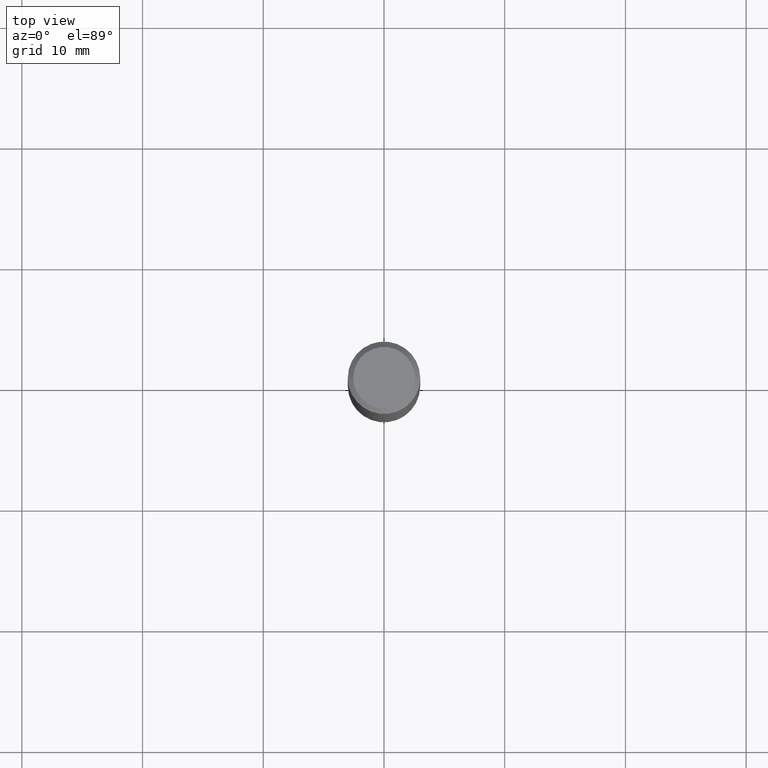
[diagram: clean part render]
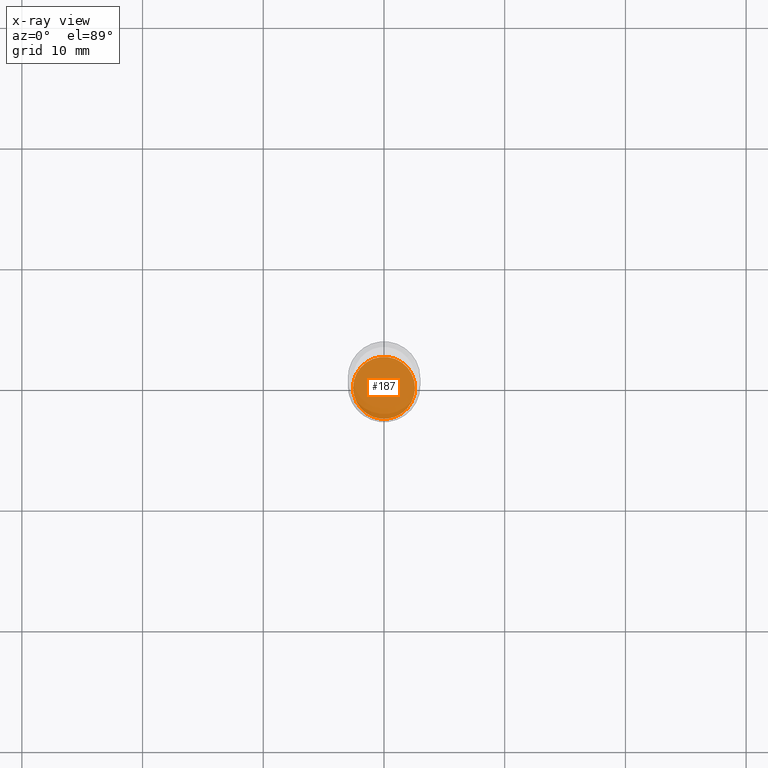
[diagram: x-ray — body ghosted, one internal face saturated and labeled with its STEP entity id]
A machine part, top view, then the same camera in x-ray: the body is ghosted and one INTERNAL B-rep face — a face not visible from any outside direction — is saturated and labeled: STEP entity #187.
In plain terms, the highlighted planar face has unit normal (-0, 0, 1).
Its self-contained STEP definition (entity closure, byte-faithful):
#12 = DIRECTION ( 'NONE',  ( 1.000000000000000000, -6.982962677686269077E-15, 0.000000000000000000 ) ) ;
#17 = AXIS2_PLACEMENT_3D ( 'NONE', #259, #407, #234 ) ;
#101 = ORIENTED_EDGE ( 'NONE', *, *, #263, .F. ) ;
#107 = CARTESIAN_POINT ( 'NONE',  ( 0.1010500000000000009, -7.413462326765649723E-15, -1.921200000000000241 ) ) ;
#119 = DIRECTION ( 'NONE',  ( -2.445468806185136597E-29, 3.491481338843145583E-15, 1.000000000000000000 ) ) ;
#127 = CARTESIAN_POINT ( 'NONE',  ( 4.698234670442884563E-29, -6.707833948185452736E-15, -1.921200000000000241 ) ) ;
#161 = AXIS2_PLACEMENT_3D ( 'NONE', #249, #170, #271 ) ;
#170 = DIRECTION ( 'NONE',  ( -2.445468806185136597E-29, 3.491481338843145583E-15, 1.000000000000000000 ) ) ;
#175 = CIRCLE ( 'NONE', #161, 0.1010500000000000009 ) ;
#179 = EDGE_CURVE ( 'NONE', #256, #465, #341, .T. ) ;
#187 = ADVANCED_FACE ( 'NONE', ( #337 ), #261, .F. ) ;
#207 = CARTESIAN_POINT ( 'NONE',  ( -0.1010500000000000009, -5.987181286525760488E-15, -1.921200000000000241 ) ) ;
#234 = DIRECTION ( 'NONE',  ( 1.000000000000000000, -6.982962677686265922E-15, 4.876176775795935793E-29 ) ) ;
#249 = CARTESIAN_POINT ( 'NONE',  ( 4.698234670442884563E-29, -6.707833948185452736E-15, -1.921200000000000241 ) ) ;
#256 = VERTEX_POINT ( 'NONE', #207 ) ;
#259 = CARTESIAN_POINT ( 'NONE',  ( 4.698234670442884563E-29, -6.707833948185452736E-15, -1.921200000000000241 ) ) ;
#261 = PLANE ( 'NONE',  #17 ) ;
#263 = EDGE_CURVE ( 'NONE', #465, #256, #175, .T. ) ;
#271 = DIRECTION ( 'NONE',  ( 1.000000000000000000, -6.982962677686269077E-15, 0.000000000000000000 ) ) ;
#337 = FACE_OUTER_BOUND ( 'NONE', #457, .T. ) ;
#341 = CIRCLE ( 'NONE', #426, 0.1010500000000000009 ) ;
#387 = ORIENTED_EDGE ( 'NONE', *, *, #179, .F. ) ;
#407 = DIRECTION ( 'NONE',  ( -2.438088387897960049E-29, 3.491481338843145188E-15, 1.000000000000000000 ) ) ;
#426 = AXIS2_PLACEMENT_3D ( 'NONE', #127, #119, #12 ) ;
#457 = EDGE_LOOP ( 'NONE', ( #101, #387 ) ) ;
#465 = VERTEX_POINT ( 'NONE', #107 ) ;